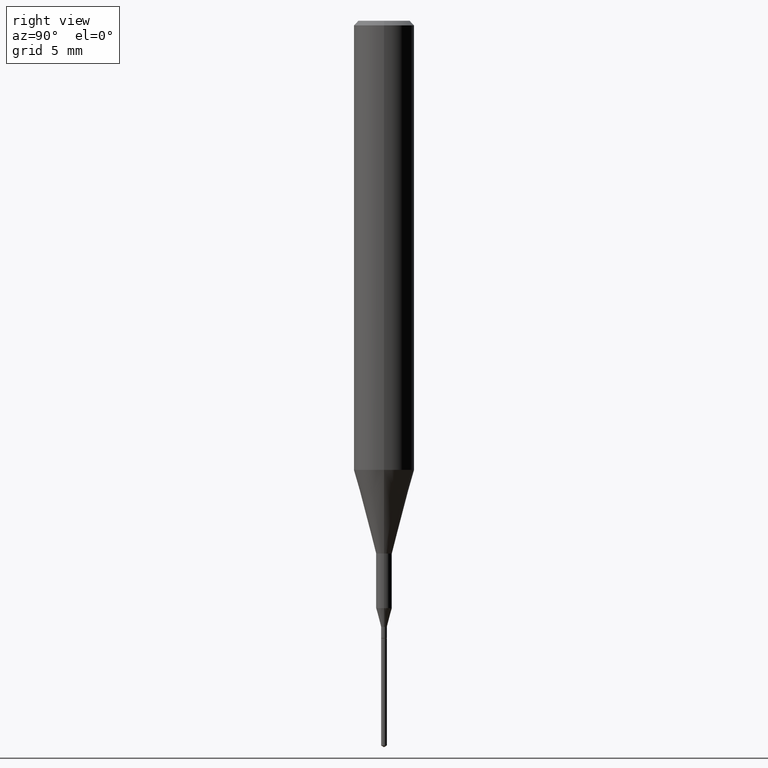
[diagram: clean part render]
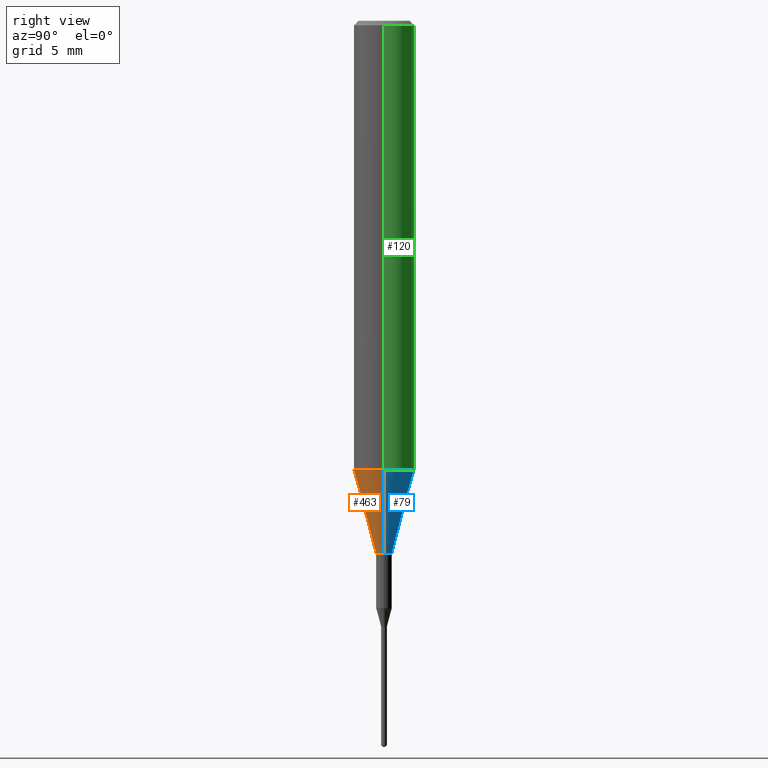
[diagram: same view with three faces highlighted in distinct colors, each labeled with its STEP entity id]
A machine part, right view with three faces highlighted in distinct colors.
Their STEP definitions:

[orange] entity #463 — the highlighted conical surface has half-angle 15 deg.
#3 = CARTESIAN_POINT ( 'NONE',  ( -0.06250000000000011102, -2.793884921928740709E-15, -0.9273926501499395458 ) ) ;
#15 = CARTESIAN_POINT ( 'NONE',  ( 0.06250000000000011102, -3.674409299134196572E-15, -0.9273926501499395458 ) ) ;
#26 = ORIENTED_EDGE ( 'NONE', *, *, #268, .F. ) ;
#33 = DIRECTION ( 'NONE',  ( -2.445468806185136597E-29, 3.491481338843145583E-15, 1.000000000000000000 ) ) ;
#65 = CARTESIAN_POINT ( 'NONE',  ( -0.01624999999999999709, -3.922039169259372691E-15, -1.100000000000000089 ) ) ;
#82 = CIRCLE ( 'NONE', #425, 0.01624999999999999709 ) ;
#121 = ORIENTED_EDGE ( 'NONE', *, *, #510, .T. ) ;
#129 = AXIS2_PLACEMENT_3D ( 'NONE', #252, #33, #263 ) ;
#180 = EDGE_CURVE ( 'NONE', #301, #261, #292, .T. ) ;
#204 = DIRECTION ( 'NONE',  ( 0.2588190451025214611, 1.565188264969620982E-15, 0.9659258262890679791 ) ) ;
#213 = CARTESIAN_POINT ( 'NONE',  ( 0.01624999999999999709, -3.954102616239861778E-15, -1.100000000000000089 ) ) ;
#216 = DIRECTION ( 'NONE',  ( -0.2588190451025214611, 5.211531920934550253E-15, 0.9659258262890679791 ) ) ;
#252 = CARTESIAN_POINT ( 'NONE',  ( 2.267909797027042920E-29, -3.237974131778804114E-15, -0.9273926501499395458 ) ) ;
#261 = VERTEX_POINT ( 'NONE', #421 ) ;
#263 = DIRECTION ( 'NONE',  ( 1.000000000000000000, -6.982962677686265922E-15, 0.000000000000000000 ) ) ;
#268 = EDGE_CURVE ( 'NONE', #401, #356, #413, .T. ) ;
#292 = LINE ( 'NONE', #15, #465 ) ;
#301 = VERTEX_POINT ( 'NONE', #213 ) ;
#321 = DIRECTION ( 'NONE',  ( -2.445468806185136597E-29, 3.491481338843145583E-15, 1.000000000000000000 ) ) ;
#323 = EDGE_CURVE ( 'NONE', #356, #261, #447, .T. ) ;
#346 = AXIS2_PLACEMENT_3D ( 'NONE', #582, #521, #438 ) ;
#356 = VERTEX_POINT ( 'NONE', #469 ) ;
#357 = FACE_OUTER_BOUND ( 'NONE', #585, .T. ) ;
#383 = VECTOR ( 'NONE', #216, 39.37007874015748143 ) ;
#399 = DIRECTION ( 'NONE',  ( 1.000000000000000000, -6.982962677686259611E-15, 0.000000000000000000 ) ) ;
#401 = VERTEX_POINT ( 'NONE', #65 ) ;
#413 = LINE ( 'NONE', #3, #383 ) ;
#421 = CARTESIAN_POINT ( 'NONE',  ( 0.06250000000000011102, -3.674409299134196572E-15, -0.9273926501499395458 ) ) ;
#425 = AXIS2_PLACEMENT_3D ( 'NONE', #481, #321, #399 ) ;
#438 = DIRECTION ( 'NONE',  ( 1.000000000000000000, -6.982962677686265922E-15, 0.000000000000000000 ) ) ;
#447 = CIRCLE ( 'NONE', #129, 0.06250000000000011102 ) ;
#463 = ADVANCED_FACE ( 'NONE', ( #357 ), #479, .T. ) ;
#465 = VECTOR ( 'NONE', #204, 39.37007874015748143 ) ;
#468 = ORIENTED_EDGE ( 'NONE', *, *, #323, .F. ) ;
#469 = CARTESIAN_POINT ( 'NONE',  ( -0.06250000000000011102, -2.793884921928740709E-15, -0.9273926501499395458 ) ) ;
#479 = CONICAL_SURFACE ( 'NONE', #346, 0.06250000000000011102, 0.2617993877991501850 ) ;
#481 = CARTESIAN_POINT ( 'NONE',  ( 2.690015686803650369E-29, -3.840629472727460101E-15, -1.100000000000000089 ) ) ;
#510 = EDGE_CURVE ( 'NONE', #401, #301, #82, .T. ) ;
#521 = DIRECTION ( 'NONE',  ( -2.445468806185136597E-29, 3.491481338843145583E-15, 1.000000000000000000 ) ) ;
#536 = ORIENTED_EDGE ( 'NONE', *, *, #180, .T. ) ;
#582 = CARTESIAN_POINT ( 'NONE',  ( 2.267909797027042920E-29, -3.237974131778804114E-15, -0.9273926501499395458 ) ) ;
#585 = EDGE_LOOP ( 'NONE', ( #26, #121, #536, #468 ) ) ;

[blue] entity #79 — the highlighted conical surface has half-angle 15 deg.
#3 = CARTESIAN_POINT ( 'NONE',  ( -0.06250000000000011102, -2.793884921928740709E-15, -0.9273926501499395458 ) ) ;
#15 = CARTESIAN_POINT ( 'NONE',  ( 0.06250000000000011102, -3.674409299134196572E-15, -0.9273926501499395458 ) ) ;
#65 = CARTESIAN_POINT ( 'NONE',  ( -0.01624999999999999709, -3.922039169259372691E-15, -1.100000000000000089 ) ) ;
#70 = EDGE_CURVE ( 'NONE', #261, #356, #415, .T. ) ;
#79 = ADVANCED_FACE ( 'NONE', ( #184 ), #158, .T. ) ;
#96 = DIRECTION ( 'NONE',  ( -2.445468806185136597E-29, 3.491481338843145583E-15, 1.000000000000000000 ) ) ;
#107 = DIRECTION ( 'NONE',  ( 1.000000000000000000, -6.982962677686265922E-15, 0.000000000000000000 ) ) ;
#109 = DIRECTION ( 'NONE',  ( 1.000000000000000000, -6.982962677686265922E-15, 0.000000000000000000 ) ) ;
#110 = CIRCLE ( 'NONE', #176, 0.01624999999999999709 ) ;
#111 = DIRECTION ( 'NONE',  ( 1.000000000000000000, -6.982962677686259611E-15, 0.000000000000000000 ) ) ;
#154 = DIRECTION ( 'NONE',  ( -2.445468806185136597E-29, 3.491481338843145583E-15, 1.000000000000000000 ) ) ;
#158 = CONICAL_SURFACE ( 'NONE', #448, 0.06250000000000011102, 0.2617993877991501850 ) ;
#170 = ORIENTED_EDGE ( 'NONE', *, *, #222, .T. ) ;
#176 = AXIS2_PLACEMENT_3D ( 'NONE', #505, #338, #111 ) ;
#180 = EDGE_CURVE ( 'NONE', #301, #261, #292, .T. ) ;
#184 = FACE_OUTER_BOUND ( 'NONE', #306, .T. ) ;
#204 = DIRECTION ( 'NONE',  ( 0.2588190451025214611, 1.565188264969620982E-15, 0.9659258262890679791 ) ) ;
#213 = CARTESIAN_POINT ( 'NONE',  ( 0.01624999999999999709, -3.954102616239861778E-15, -1.100000000000000089 ) ) ;
#216 = DIRECTION ( 'NONE',  ( -0.2588190451025214611, 5.211531920934550253E-15, 0.9659258262890679791 ) ) ;
#222 = EDGE_CURVE ( 'NONE', #301, #401, #110, .T. ) ;
#261 = VERTEX_POINT ( 'NONE', #421 ) ;
#268 = EDGE_CURVE ( 'NONE', #401, #356, #413, .T. ) ;
#292 = LINE ( 'NONE', #15, #465 ) ;
#301 = VERTEX_POINT ( 'NONE', #213 ) ;
#306 = EDGE_LOOP ( 'NONE', ( #170, #391, #517, #589 ) ) ;
#338 = DIRECTION ( 'NONE',  ( -2.445468806185136597E-29, 3.491481338843145583E-15, 1.000000000000000000 ) ) ;
#356 = VERTEX_POINT ( 'NONE', #469 ) ;
#383 = VECTOR ( 'NONE', #216, 39.37007874015748143 ) ;
#391 = ORIENTED_EDGE ( 'NONE', *, *, #268, .T. ) ;
#401 = VERTEX_POINT ( 'NONE', #65 ) ;
#413 = LINE ( 'NONE', #3, #383 ) ;
#415 = CIRCLE ( 'NONE', #487, 0.06250000000000011102 ) ;
#421 = CARTESIAN_POINT ( 'NONE',  ( 0.06250000000000011102, -3.674409299134196572E-15, -0.9273926501499395458 ) ) ;
#446 = CARTESIAN_POINT ( 'NONE',  ( 2.267909797027042920E-29, -3.237974131778804114E-15, -0.9273926501499395458 ) ) ;
#448 = AXIS2_PLACEMENT_3D ( 'NONE', #446, #96, #107 ) ;
#465 = VECTOR ( 'NONE', #204, 39.37007874015748143 ) ;
#469 = CARTESIAN_POINT ( 'NONE',  ( -0.06250000000000011102, -2.793884921928740709E-15, -0.9273926501499395458 ) ) ;
#487 = AXIS2_PLACEMENT_3D ( 'NONE', #494, #154, #109 ) ;
#494 = CARTESIAN_POINT ( 'NONE',  ( 2.267909797027042920E-29, -3.237974131778804114E-15, -0.9273926501499395458 ) ) ;
#505 = CARTESIAN_POINT ( 'NONE',  ( 2.690015686803650369E-29, -3.840629472727460101E-15, -1.100000000000000089 ) ) ;
#517 = ORIENTED_EDGE ( 'NONE', *, *, #70, .F. ) ;
#589 = ORIENTED_EDGE ( 'NONE', *, *, #180, .F. ) ;

[green] entity #120 — the highlighted cylindrical surface (edge-blend (fillet) strip) has radius 1.5875 mm, axis along (-0, 0, 1).
#16 = CARTESIAN_POINT ( 'NONE',  ( 0.06250000000000000000, -4.691678049070463404E-16, -0.009375000000000062103 ) ) ;
#25 = DIRECTION ( 'NONE',  ( 1.000000000000000000, -6.982962677686266711E-15, 0.000000000000000000 ) ) ;
#70 = EDGE_CURVE ( 'NONE', #261, #356, #415, .T. ) ;
#88 = VECTOR ( 'NONE', #155, 39.37007874015748143 ) ;
#94 = ORIENTED_EDGE ( 'NONE', *, *, #206, .F. ) ;
#99 = CIRCLE ( 'NONE', #319, 0.06250000000000000000 ) ;
#109 = DIRECTION ( 'NONE',  ( 1.000000000000000000, -6.982962677686265922E-15, 0.000000000000000000 ) ) ;
#120 = ADVANCED_FACE ( 'NONE', ( #455 ), #280, .T. ) ;
#139 = VERTEX_POINT ( 'NONE', #16 ) ;
#148 = VECTOR ( 'NONE', #538, 39.37007874015748143 ) ;
#154 = DIRECTION ( 'NONE',  ( -2.445468806185136597E-29, 3.491481338843145583E-15, 1.000000000000000000 ) ) ;
#155 = DIRECTION ( 'NONE',  ( -2.445468806185136877E-29, 3.491481338843145188E-15, 1.000000000000000000 ) ) ;
#160 = CARTESIAN_POINT ( 'NONE',  ( 2.292627005798580623E-31, -3.273263755165470801E-17, -0.009375000000000062103 ) ) ;
#162 = EDGE_CURVE ( 'NONE', #356, #417, #450, .T. ) ;
#192 = CARTESIAN_POINT ( 'NONE',  ( 0.000000000000000000, 0.000000000000000000, 0.000000000000000000 ) ) ;
#193 = ORIENTED_EDGE ( 'NONE', *, *, #162, .T. ) ;
#206 = EDGE_CURVE ( 'NONE', #261, #139, #240, .T. ) ;
#221 = ORIENTED_EDGE ( 'NONE', *, *, #70, .T. ) ;
#240 = LINE ( 'NONE', #546, #88 ) ;
#246 = DIRECTION ( 'NONE',  ( 1.000000000000000000, -6.982962677686266711E-15, 4.876176775795935232E-29 ) ) ;
#249 = AXIS2_PLACEMENT_3D ( 'NONE', #192, #422, #246 ) ;
#261 = VERTEX_POINT ( 'NONE', #421 ) ;
#274 = ORIENTED_EDGE ( 'NONE', *, *, #373, .F. ) ;
#280 = CYLINDRICAL_SURFACE ( 'NONE', #249, 0.06250000000000005551 ) ;
#316 = EDGE_LOOP ( 'NONE', ( #221, #193, #274, #94 ) ) ;
#319 = AXIS2_PLACEMENT_3D ( 'NONE', #160, #436, #25 ) ;
#335 = CARTESIAN_POINT ( 'NONE',  ( -0.06250000000000005551, 4.440892098500630106E-16, -3.074334431409318916E-30 ) ) ;
#356 = VERTEX_POINT ( 'NONE', #469 ) ;
#373 = EDGE_CURVE ( 'NONE', #139, #417, #99, .T. ) ;
#415 = CIRCLE ( 'NONE', #487, 0.06250000000000011102 ) ;
#417 = VERTEX_POINT ( 'NONE', #433 ) ;
#421 = CARTESIAN_POINT ( 'NONE',  ( 0.06250000000000011102, -3.674409299134196572E-15, -0.9273926501499395458 ) ) ;
#422 = DIRECTION ( 'NONE',  ( -2.445468806185136597E-29, 3.491481338843145583E-15, 1.000000000000000000 ) ) ;
#433 = CARTESIAN_POINT ( 'NONE',  ( -0.06250000000000000000, -1.191264174815165938E-15, -0.009375000000000062103 ) ) ;
#436 = DIRECTION ( 'NONE',  ( -2.445468806185136597E-29, 3.491481338843145583E-15, 1.000000000000000000 ) ) ;
#450 = LINE ( 'NONE', #335, #148 ) ;
#455 = FACE_OUTER_BOUND ( 'NONE', #316, .T. ) ;
#469 = CARTESIAN_POINT ( 'NONE',  ( -0.06250000000000011102, -2.793884921928740709E-15, -0.9273926501499395458 ) ) ;
#487 = AXIS2_PLACEMENT_3D ( 'NONE', #494, #154, #109 ) ;
#494 = CARTESIAN_POINT ( 'NONE',  ( 2.267909797027042920E-29, -3.237974131778804114E-15, -0.9273926501499395458 ) ) ;
#538 = DIRECTION ( 'NONE',  ( -2.445468806185136877E-29, 3.491481338843145188E-15, 1.000000000000000000 ) ) ;
#546 = CARTESIAN_POINT ( 'NONE',  ( 0.06250000000000005551, -4.364351673553920638E-16, 3.047610484872462323E-30 ) ) ;